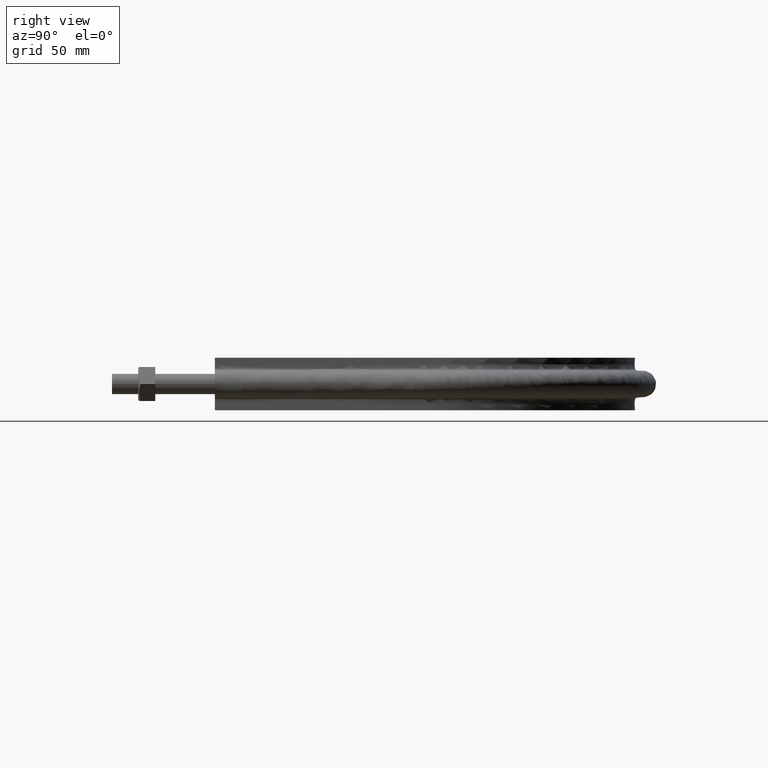
[diagram: clean part render]
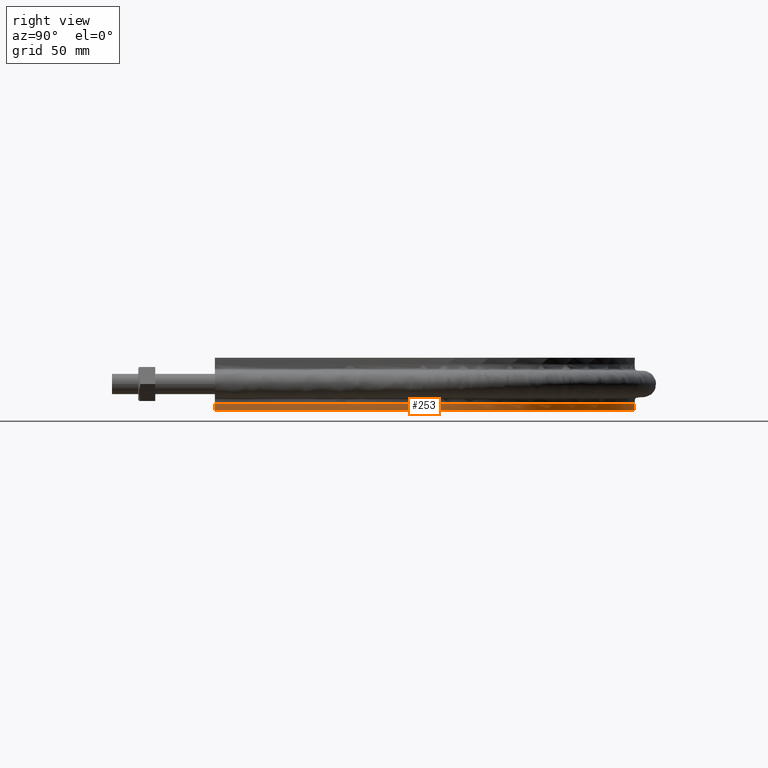
[diagram: same view with one face highlighted and labeled with its STEP entity id]
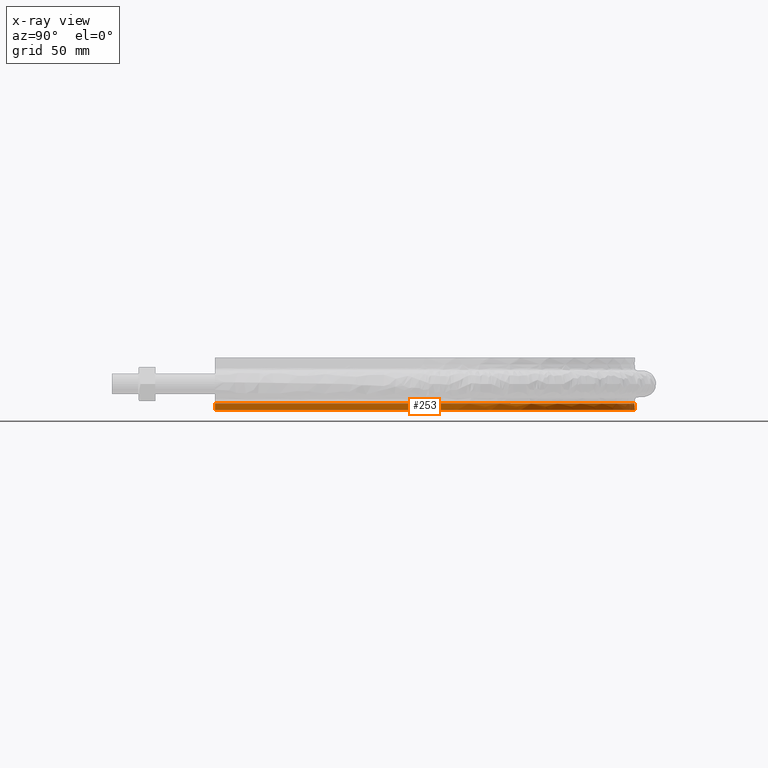
[diagram: x-ray of the same camera — body ghosted, the highlighted face saturated]
A machine part, right view. The second image highlights one B-rep face of the part: STEP entity #253.
The next image is the same camera in x-ray: the body ghosted, the highlighted face saturated — about 0% of this face is hidden behind the body in this view.
In plain terms, the highlighted face is a SurfaceOfExtrusion surface.
Its self-contained STEP definition (entity closure, byte-faithful):
#253 = ADVANCED_FACE( '', ( #347 ), #348, .T. );
#347 = FACE_OUTER_BOUND( '', #645, .T. );
#348 = SURFACE_OF_LINEAR_EXTRUSION( '', #646, #647 );
#645 = EDGE_LOOP( '', ( #1761, #1762, #1763, #1764 ) );
#646 = B_SPLINE_CURVE_WITH_KNOTS( '', 3, ( #1765, #1766, #1767, #1768, #1769, #1770, #1771, #1772, #1773, #1774, #1775, #1776, #1777, #1778, #1779, #1780, #1781, #1782, #1783, #1784, #1785, #1786, #1787, #1788, #1789, #1790, #1791, #1792, #1793, #1794, #1795, #1796, #1797, #1798, #1799, #1800, #1801, #1802, #1803, #1804, #1805, #1806, #1807, #1808, #1809, #1810, #1811, #1812, #1813, #1814, #1815, #1816, #1817, #1818, #1819, #1820, #1821, #1822, #1823, #1824, #1825, #1826, #1827, #1828, #1829, #1830, #1831, #1832, #1833, #1834, #1835, #1836, #1837, #1838, #1839, #1840, #1841, #1842, #1843, #1844, #1845, #1846, #1847, #1848, #1849, #1850, #1851, #1852, #1853, #1854, #1855, #1856, #1857, #1858, #1859, #1860, #1861, #1862, #1863, #1864, #1865, #1866, #1867, #1868, #1869, #1870, #1871, #1872, #1873, #1874 ), .UNSPECIFIED., .F., .F., ( 4, 1, 2, 2, 2, 2, 2, 2, 2, 2, 2, 2, 2, 2, 2, 2, 2, 2, 2, 2, 2, 2, 2, 2, 2, 2, 2, 2, 2, 2, 2, 2, 2, 2, 2, 2, 2, 2, 2, 2, 2, 2, 2, 2, 2, 2, 2, 2, 2, 2, 2, 2, 2, 2, 1, 4 ), ( 0.000000000000000, 0.124999999999995, 0.187499999999993, 0.191406249999993, 0.195312499999993, 0.203124999999992, 0.218749999999991, 0.222656249999991, 0.226562499999991, 0.234374999999991, 0.249999999999991, 0.281249999999991, 0.289062499999991, 0.292968749999991, 0.296874999999991, 0.312499999999991, 0.343749999999991, 0.351562499999991, 0.359374999999991, 0.374999999999990, 0.406249999999990, 0.421874999999990, 0.429687499999990, 0.437499999999990, 0.468749999999989, 0.484374999999989, 0.492187499999989, 0.499999999999989, 0.515624999999989, 0.531249999999988, 0.546874999999988, 0.554687499999988, 0.562499999999988, 0.578124999999988, 0.593749999999988, 0.624999999999988, 0.628906249999988, 0.632812499999988, 0.640624999999988, 0.656249999999988, 0.687499999999988, 0.691406249999988, 0.695312499999988, 0.703124999999988, 0.718749999999988, 0.749999999999988, 0.757812499999988, 0.761718749999988, 0.765624999999988, 0.781249999999989, 0.796874999999990, 0.804687499999990, 0.808593749999990, 0.812499999999990, 0.874999999999994, 1.00000000000000 ), .UNSPECIFIED. );
#647 = VECTOR( '', #1875, 1000.00000000000 );
#1761 = ORIENTED_EDGE( '', *, *, #1987, .T. );
#1762 = ORIENTED_EDGE( '', *, *, #1983, .T. );
#1763 = ORIENTED_EDGE( '', *, *, #1988, .F. );
#1764 = ORIENTED_EDGE( '', *, *, #1978, .F. );
#1765 = CARTESIAN_POINT( '', ( -164.400000000000, 78.5100000000001, -15.0000000000000 ) );
#1766 = CARTESIAN_POINT( '', ( -164.400000000000, 112.996106467763, -15.0000000000000 ) );
#1767 = CARTESIAN_POINT( '', ( -164.400000000000, 164.725266169408, -15.0000000000000 ) );
#1768 = CARTESIAN_POINT( '', ( -164.400000000000, 216.454425871052, -15.0000000000000 ) );
#1769 = CARTESIAN_POINT( '', ( -164.400000000000, 234.775169932051, -15.0000000000000 ) );
#1770 = CARTESIAN_POINT( '', ( -164.398813550317, 235.852821581500, -15.0000000000000 ) );
#1771 = CARTESIAN_POINT( '', ( -164.368108367063, 238.007189322103, -15.0000000000000 ) );
#1772 = CARTESIAN_POINT( '', ( -164.342080895018, 239.084020697952, -15.0000000000000 ) );
#1773 = CARTESIAN_POINT( '', ( -164.232092194460, 242.313461250392, -15.0000000000000 ) );
#1774 = CARTESIAN_POINT( '', ( -164.116241194121, 244.465017397138, -15.0000000000000 ) );
#1775 = CARTESIAN_POINT( '', ( -163.641462036595, 250.915484711679, -15.0000000000000 ) );
#1776 = CARTESIAN_POINT( '', ( -163.155580462305, 255.210203759885, -15.0000000000000 ) );
#1777 = CARTESIAN_POINT( '', ( -162.333675363724, 260.571517826757, -15.0000000000000 ) );
#1778 = CARTESIAN_POINT( '', ( -162.158545284194, 261.643425696206, -15.0000000000000 ) );
#1779 = CARTESIAN_POINT( '', ( -161.786628214989, 263.786526303843, -15.0000000000000 ) );
#1780 = CARTESIAN_POINT( '', ( -161.589634482679, 264.858713038455, -15.0000000000000 ) );
#1781 = CARTESIAN_POINT( '', ( -160.968305431881, 268.062088811464, -15.0000000000000 ) );
#1782 = CARTESIAN_POINT( '', ( -160.513270676098, 270.182710055850, -15.0000000000000 ) );
#1783 = CARTESIAN_POINT( '', ( -159.027557754481, 276.500359593573, -15.0000000000000 ) );
#1784 = CARTESIAN_POINT( '', ( -157.876518451671, 280.653264429394, -15.0000000000000 ) );
#1785 = CARTESIAN_POINT( '', ( -153.947032001795, 292.937345931315, -15.0000000000000 ) );
#1786 = CARTESIAN_POINT( '', ( -150.691120136139, 300.893487741848, -15.0000000000000 ) );
#1787 = CARTESIAN_POINT( '', ( -145.821985675345, 310.545668134871, -15.0000000000000 ) );
#1788 = CARTESIAN_POINT( '', ( -144.807995502513, 312.461380666881, -15.0000000000000 ) );
#1789 = CARTESIAN_POINT( '', ( -143.225880960344, 315.312539944798, -15.0000000000000 ) );
#1790 = CARTESIAN_POINT( '', ( -142.687697489771, 316.260241598423, -15.0000000000000 ) );
#1791 = CARTESIAN_POINT( '', ( -141.594350337442, 318.141956024918, -15.0000000000000 ) );
#1792 = CARTESIAN_POINT( '', ( -141.039267835167, 319.075891761575, -15.0000000000000 ) );
#1793 = CARTESIAN_POINT( '', ( -138.222181199068, 323.711268029201, -15.0000000000000 ) );
#1794 = CARTESIAN_POINT( '', ( -135.835418638084, 327.310018570784, -15.0000000000000 ) );
#1795 = CARTESIAN_POINT( '', ( -128.283562816433, 337.783966292530, -15.0000000000000 ) );
#1796 = CARTESIAN_POINT( '', ( -122.726288805896, 344.336355322911, -15.0000000000000 ) );
#1797 = CARTESIAN_POINT( '', ( -115.123140385251, 351.986423454744, -15.0000000000000 ) );
#1798 = CARTESIAN_POINT( '', ( -113.569638753351, 353.489379830996, -15.0000000000000 ) );
#1799 = CARTESIAN_POINT( '', ( -110.396195337457, 356.440604987088, -15.0000000000000 ) );
#1800 = CARTESIAN_POINT( '', ( -108.774438835459, 357.890427378995, -15.0000000000000 ) );
#1801 = CARTESIAN_POINT( '', ( -103.819607334312, 362.146372134186, -15.0000000000000 ) );
#1802 = CARTESIAN_POINT( '', ( -100.426161144554, 364.834793604190, -15.0000000000000 ) );
#1803 = CARTESIAN_POINT( '', ( -89.9824687653419, 372.465514094679, -15.0000000000000 ) );
#1804 = CARTESIAN_POINT( '', ( -82.6696423250386, 376.974545597898, -15.0000000000000 ) );
#1805 = CARTESIAN_POINT( '', ( -71.1713718990070, 382.865171733881, -15.0000000000000 ) );
#1806 = CARTESIAN_POINT( '', ( -67.2506245394262, 384.683525984584, -15.0000000000000 ) );
#1807 = CARTESIAN_POINT( '', ( -61.2349390330761, 387.189020812454, -15.0000000000000 ) );
#1808 = CARTESIAN_POINT( '', ( -59.2041890055403, 387.988083247064, -15.0000000000000 ) );
#1809 = CARTESIAN_POINT( '', ( -55.1322863354683, 389.498206135326, -15.0000000000000 ) );
#1810 = CARTESIAN_POINT( '', ( -53.0874238815457, 390.210949480402, -15.0000000000000 ) );
#1811 = CARTESIAN_POINT( '', ( -42.8192026236166, 393.566146384567, -15.0000000000000 ) );
#1812 = CARTESIAN_POINT( '', ( -34.4651179161253, 395.587794430536, -15.0000000000000 ) );
#1813 = CARTESIAN_POINT( '', ( -21.7242525597123, 397.624238271828, -15.0000000000000 ) );
#1814 = CARTESIAN_POINT( '', ( -17.4422836120292, 398.136775373455, -15.0000000000000 ) );
#1815 = CARTESIAN_POINT( '', ( -10.9662055313146, 398.653296815738, -15.0000000000000 ) );
#1816 = CARTESIAN_POINT( '', ( -8.79864529239620, 398.783359457582, -15.0000000000000 ) );
#1817 = CARTESIAN_POINT( '', ( -4.44551903538577, 398.957976921619, -15.0000000000000 ) );
#1818 = CARTESIAN_POINT( '', ( -2.27259610837854, 399.001985705461, -15.0000000000000 ) );
#1819 = CARTESIAN_POINT( '', ( 4.22655632945022, 399.006162562492, -15.0000000000000 ) );
#1820 = CARTESIAN_POINT( '', ( 8.53713545173537, 398.838905013959, -15.0000000000000 ) );
#1821 = CARTESIAN_POINT( '', ( 17.1147215710093, 398.170483930921, -15.0000000000000 ) );
#1822 = CARTESIAN_POINT( '', ( 21.3817269434237, 397.669307946827, -15.0000000000000 ) );
#1823 = CARTESIAN_POINT( '', ( 29.8718824409126, 396.330880345343, -15.0000000000000 ) );
#1824 = CARTESIAN_POINT( '', ( 34.0949513257592, 395.493006160240, -15.0000000000000 ) );
#1825 = CARTESIAN_POINT( '', ( 40.3962993198101, 393.981349502615, -15.0000000000000 ) );
#1826 = CARTESIAN_POINT( '', ( 42.4912038565129, 393.434972561113, -15.0000000000000 ) );
#1827 = CARTESIAN_POINT( '', ( 46.6697995000334, 392.256286873398, -15.0000000000000 ) );
#1828 = CARTESIAN_POINT( '', ( 48.7579338922558, 391.622436253105, -15.0000000000000 ) );
#1829 = CARTESIAN_POINT( '', ( 54.9584216875447, 389.605524079873, -15.0000000000000 ) );
#1830 = CARTESIAN_POINT( '', ( 59.0140687451709, 388.106221395848, -15.0000000000000 ) );
#1831 = CARTESIAN_POINT( '', ( 66.9734086702903, 384.806295118109, -15.0000000000000 ) );
#1832 = CARTESIAN_POINT( '', ( 70.8770915855636, 383.005651789421, -15.0000000000000 ) );
#1833 = CARTESIAN_POINT( '', ( 82.3605021218268, 377.152321599626, -15.0000000000000 ) );
#1834 = CARTESIAN_POINT( '', ( 89.7120307014920, 372.647122421075, -15.0000000000000 ) );
#1835 = CARTESIAN_POINT( '', ( 97.6299249979688, 366.879626274600, -15.0000000000000 ) );
#1836 = CARTESIAN_POINT( '', ( 98.5047204132680, 366.229041053651, -15.0000000000000 ) );
#1837 = CARTESIAN_POINT( '', ( 100.236657581933, 364.914222046599, -15.0000000000000 ) );
#1838 = CARTESIAN_POINT( '', ( 101.094794684466, 364.249272856705, -15.0000000000000 ) );
#1839 = CARTESIAN_POINT( '', ( 103.645933153505, 362.232019577849, -15.0000000000000 ) );
#1840 = CARTESIAN_POINT( '', ( 105.315674270232, 360.857321899442, -15.0000000000000 ) );
#1841 = CARTESIAN_POINT( '', ( 110.233147606976, 356.644897390919, -15.0000000000000 ) );
#1842 = CARTESIAN_POINT( '', ( 113.389316657785, 353.719018970044, -15.0000000000000 ) );
#1843 = CARTESIAN_POINT( '', ( 122.494796724361, 344.591882752152, -15.0000000000000 ) );
#1844 = CARTESIAN_POINT( '', ( 128.081145291164, 338.041186228428, -15.0000000000000 ) );
#1845 = CARTESIAN_POINT( '', ( 133.803670384363, 330.130479675381, -15.0000000000000 ) );
#1846 = CARTESIAN_POINT( '', ( 134.431692733714, 329.243989644066, -15.0000000000000 ) );
#1847 = CARTESIAN_POINT( '', ( 135.671998176902, 327.455856759366, -15.0000000000000 ) );
#1848 = CARTESIAN_POINT( '', ( 136.284665085840, 326.553597174778, -15.0000000000000 ) );
#1849 = CARTESIAN_POINT( '', ( 138.091073738600, 323.835825608081, -15.0000000000000 ) );
#1850 = CARTESIAN_POINT( '', ( 139.255724754700, 322.005851801354, -15.0000000000000 ) );
#1851 = CARTESIAN_POINT( '', ( 142.632951955004, 316.462530378628, -15.0000000000000 ) );
#1852 = CARTESIAN_POINT( '', ( 144.729041813961, 312.695892337488, -15.0000000000000 ) );
#1853 = CARTESIAN_POINT( '', ( 150.559103149299, 301.186356080804, -15.0000000000000 ) );
#1854 = CARTESIAN_POINT( '', ( 153.837172045715, 293.234890531218, -15.0000000000000 ) );
#1855 = CARTESIAN_POINT( '', ( 157.149590192740, 282.936358190019, -15.0000000000000 ) );
#1856 = CARTESIAN_POINT( '', ( 157.772812341462, 280.858690291605, -15.0000000000000 ) );
#1857 = CARTESIAN_POINT( '', ( 158.648068770349, 277.714933118652, -15.0000000000000 ) );
#1858 = CARTESIAN_POINT( '', ( 158.930158123234, 276.661365833308, -15.0000000000000 ) );
#1859 = CARTESIAN_POINT( '', ( 159.472262153517, 274.553221977531, -15.0000000000000 ) );
#1860 = CARTESIAN_POINT( '', ( 159.732447986844, 273.498121732389, -15.0000000000000 ) );
#1861 = CARTESIAN_POINT( '', ( 160.979600094206, 268.217531333791, -15.0000000000000 ) );
#1862 = CARTESIAN_POINT( '', ( 161.805586980862, 263.976806953231, -15.0000000000000 ) );
#1863 = CARTESIAN_POINT( '', ( 163.122468535573, 255.463646859113, -15.0000000000000 ) );
#1864 = CARTESIAN_POINT( '', ( 163.613345066263, 251.191209429132, -15.0000000000000 ) );
#1865 = CARTESIAN_POINT( '', ( 164.098151632013, 244.758751892187, -15.0000000000000 ) );
#1866 = CARTESIAN_POINT( '', ( 164.217770636892, 242.610626316205, -15.0000000000000 ) );
#1867 = CARTESIAN_POINT( '', ( 164.333610316843, 239.382420246157, -15.0000000000000 ) );
#1868 = CARTESIAN_POINT( '', ( 164.361621235171, 238.305348210462, -15.0000000000000 ) );
#1869 = CARTESIAN_POINT( '', ( 164.396285024590, 236.149182927863, -15.0000000000000 ) );
#1870 = CARTESIAN_POINT( '', ( 164.400000000000, 235.069811654245, -15.0000000000000 ) );
#1871 = CARTESIAN_POINT( '', ( 164.400000000000, 216.714523391334, -15.0000000000000 ) );
#1872 = CARTESIAN_POINT( '', ( 164.400000000000, 164.887827119584, -15.0000000000000 ) );
#1873 = CARTESIAN_POINT( '', ( 164.400000000000, 113.061130847834, -15.0000000000000 ) );
#1874 = CARTESIAN_POINT( '', ( 164.400000000000, 78.5100000000000, -15.0000000000000 ) );
#1875 = DIRECTION( '', ( 0.000000000000000, 0.000000000000000, -1.00000000000000 ) );
#1978 = EDGE_CURVE( '', #2095, #2097, #2098, .T. );
#1983 = EDGE_CURVE( '', #2107, #2105, #2108, .T. );
#1987 = EDGE_CURVE( '', #2095, #2107, #2113, .T. );
#1988 = EDGE_CURVE( '', #2097, #2105, #2114, .T. );
#2095 = VERTEX_POINT( '', #2548 );
#2097 = VERTEX_POINT( '', #2581 );
#2098 = LINE( '', #2582, #2583 );
#2105 = VERTEX_POINT( '', #2602 );
#2107 = VERTEX_POINT( '', #2605 );
#2108 = LINE( '', #2606, #2607 );
#2113 = B_SPLINE_CURVE_WITH_KNOTS( '', 3, ( #2654, #2655, #2656, #2657, #2658, #2659, #2660, #2661, #2662, #2663, #2664, #2665, #2666, #2667, #2668, #2669, #2670, #2671, #2672, #2673, #2674, #2675, #2676, #2677, #2678, #2679, #2680, #2681, #2682, #2683, #2684, #2685, #2686, #2687, #2688, #2689, #2690, #2691, #2692, #2693, #2694, #2695, #2696, #2697, #2698, #2699, #2700, #2701, #2702, #2703, #2704, #2705, #2706, #2707, #2708, #2709, #2710, #2711, #2712, #2713, #2714, #2715, #2716, #2717, #2718, #2719, #2720, #2721, #2722, #2723, #2724, #2725, #2726, #2727, #2728, #2729, #2730, #2731, #2732, #2733, #2734, #2735, #2736, #2737, #2738, #2739, #2740, #2741, #2742, #2743, #2744, #2745, #2746, #2747, #2748, #2749, #2750, #2751, #2752, #2753, #2754, #2755, #2756, #2757, #2758, #2759, #2760, #2761, #2762, #2763 ), .UNSPECIFIED., .F., .F., ( 4, 1, 2, 2, 2, 2, 2, 2, 2, 2, 2, 2, 2, 2, 2, 2, 2, 2, 2, 2, 2, 2, 2, 2, 2, 2, 2, 2, 2, 2, 2, 2, 2, 2, 2, 2, 2, 2, 2, 2, 2, 2, 2, 2, 2, 2, 2, 2, 2, 2, 2, 2, 2, 2, 1, 4 ), ( 0.000000000000000, 0.124999999999995, 0.187499999999993, 0.191406249999993, 0.195312499999993, 0.203124999999992, 0.218749999999991, 0.222656249999991, 0.226562499999991, 0.234374999999991, 0.249999999999991, 0.281249999999991, 0.289062499999991, 0.292968749999991, 0.296874999999991, 0.312499999999991, 0.343749999999991, 0.351562499999991, 0.359374999999991, 0.374999999999990, 0.406249999999990, 0.421874999999990, 0.429687499999990, 0.437499999999990, 0.468749999999989, 0.484374999999989, 0.492187499999989, 0.499999999999989, 0.515624999999989, 0.531249999999988, 0.546874999999988, 0.554687499999988, 0.562499999999988, 0.578124999999988, 0.593749999999988, 0.624999999999988, 0.628906249999988, 0.632812499999988, 0.640624999999988, 0.656249999999988, 0.687499999999988, 0.691406249999988, 0.695312499999988, 0.703124999999988, 0.718749999999988, 0.749999999999988, 0.757812499999988, 0.761718749999988, 0.765624999999988, 0.781249999999989, 0.796874999999990, 0.804687499999990, 0.808593749999990, 0.812499999999990, 0.874999999999994, 1.00000000000000 ), .UNSPECIFIED. );
#2114 = B_SPLINE_CURVE_WITH_KNOTS( '', 3, ( #2764, #2765, #2766, #2767, #2768, #2769, #2770, #2771, #2772, #2773, #2774, #2775, #2776, #2777, #2778, #2779, #2780, #2781, #2782, #2783, #2784, #2785, #2786, #2787, #2788, #2789, #2790, #2791, #2792, #2793, #2794, #2795, #2796, #2797, #2798, #2799, #2800, #2801, #2802, #2803, #2804, #2805, #2806, #2807, #2808, #2809, #2810, #2811, #2812, #2813, #2814, #2815, #2816, #2817, #2818, #2819, #2820, #2821, #2822, #2823, #2824, #2825, #2826, #2827, #2828, #2829, #2830, #2831, #2832, #2833, #2834, #2835, #2836, #2837, #2838, #2839, #2840, #2841, #2842, #2843, #2844, #2845, #2846, #2847, #2848, #2849, #2850, #2851, #2852, #2853, #2854, #2855, #2856, #2857, #2858, #2859, #2860, #2861, #2862, #2863, #2864, #2865, #2866, #2867, #2868, #2869, #2870, #2871, #2872, #2873, #2874, #2875, #2876, #2877, #2878, #2879, #2880, #2881, #2882, #2883, #2884, #2885, #2886, #2887, #2888, #2889, #2890, #2891, #2892, #2893, #2894 ), .UNSPECIFIED., .F., .F., ( 4, 1, 1, 1, 1, 2, 2, 2, 2, 2, 2, 2, 2, 2, 2, 2, 2, 2, 2, 2, 2, 2, 2, 2, 2, 2, 2, 2, 2, 2, 2, 2, 2, 2, 2, 2, 2, 2, 2, 2, 2, 2, 2, 2, 2, 2, 2, 2, 2, 2, 2, 2, 2, 2, 2, 2, 1, 2, 2, 2, 2, 2, 2, 2, 2, 1, 1, 1, 1, 4 ), ( 0.000000000000000, 0.104054729085109, 0.130068411356386, 0.143075252492024, 0.149578673059843, 0.152830383343753, 0.156082093627663, 0.159333803911572, 0.162585514195482, 0.169088934763301, 0.182095775898939, 0.195102617034578, 0.208109458170216, 0.221116299305855, 0.227619719873674, 0.234123140441493, 0.247129981577132, 0.260136822712770, 0.273143663848409, 0.276395374132318, 0.279647084416228, 0.286150504984047, 0.299157346119686, 0.312164187255325, 0.325171028390963, 0.331674448958783, 0.334926159242692, 0.338177869526602, 0.351184710662240, 0.364191551797878, 0.377198392933517, 0.383701813501336, 0.386953523785245, 0.390205234069155, 0.403212075204793, 0.416218916340431, 0.429225757476069, 0.442232598611708, 0.448736019179527, 0.455239439747346, 0.468246280882984, 0.481253122018622, 0.494259963154260, 0.500763383722080, 0.507266804289899, 0.520273645425537, 0.533280486561175, 0.546287327696813, 0.552790748264632, 0.556042458548542, 0.559294168832451, 0.572301009968090, 0.585307851103728, 0.598314692239366, 0.611321533375004, 0.614573243658913, 0.617824953942822, 0.624328374510641, 0.637335215646279, 0.650342056781918, 0.663348897917556, 0.669852318485375, 0.673104028769284, 0.676355739053194, 0.679607449337103, 0.682859159621013, 0.689362580188832, 0.702369421324470, 0.728383103595746, 0.832437832680851 ), .UNSPECIFIED. );
#2548 = CARTESIAN_POINT( '', ( -164.400000000000, 78.5100000000001, -15.0000000000000 ) );
#2581 = CARTESIAN_POINT( '', ( -164.400000000000, 78.5100000000001, -20.0000000000000 ) );
#2582 = CARTESIAN_POINT( '', ( -164.400000000000, 78.5100000000001, -15.0000000000000 ) );
#2583 = VECTOR( '', #3001, 1000.00000000000 );
#2602 = CARTESIAN_POINT( '', ( 164.400000000000, 78.5100000000000, -20.0000000000000 ) );
#2605 = CARTESIAN_POINT( '', ( 164.400000000000, 78.5100000000001, -15.0000000000000 ) );
#2606 = CARTESIAN_POINT( '', ( 164.400000000000, 78.5100000000000, -15.0000000000000 ) );
#2607 = VECTOR( '', #3005, 1000.00000000000 );
#2654 = CARTESIAN_POINT( '', ( -164.400000000000, 78.5100000000001, -15.0000000000000 ) );
#2655 = CARTESIAN_POINT( '', ( -164.400000000000, 112.996106467763, -15.0000000000000 ) );
#2656 = CARTESIAN_POINT( '', ( -164.400000000000, 164.725266169408, -15.0000000000000 ) );
#2657 = CARTESIAN_POINT( '', ( -164.400000000000, 216.454425871052, -15.0000000000000 ) );
#2658 = CARTESIAN_POINT( '', ( -164.400000000000, 234.775169932051, -15.0000000000000 ) );
#2659 = CARTESIAN_POINT( '', ( -164.398813550317, 235.852821581500, -15.0000000000000 ) );
#2660 = CARTESIAN_POINT( '', ( -164.368108367063, 238.007189322103, -15.0000000000000 ) );
#2661 = CARTESIAN_POINT( '', ( -164.342080895018, 239.084020697952, -15.0000000000000 ) );
#2662 = CARTESIAN_POINT( '', ( -164.232092194460, 242.313461250392, -15.0000000000000 ) );
#2663 = CARTESIAN_POINT( '', ( -164.116241194121, 244.465017397138, -15.0000000000000 ) );
#2664 = CARTESIAN_POINT( '', ( -163.641462036595, 250.915484711679, -15.0000000000000 ) );
#2665 = CARTESIAN_POINT( '', ( -163.155580462305, 255.210203759885, -15.0000000000000 ) );
#2666 = CARTESIAN_POINT( '', ( -162.333675363724, 260.571517826757, -15.0000000000000 ) );
#2667 = CARTESIAN_POINT( '', ( -162.158545284194, 261.643425696206, -15.0000000000000 ) );
#2668 = CARTESIAN_POINT( '', ( -161.786628214989, 263.786526303843, -15.0000000000000 ) );
#2669 = CARTESIAN_POINT( '', ( -161.589634482679, 264.858713038455, -15.0000000000000 ) );
#2670 = CARTESIAN_POINT( '', ( -160.968305431881, 268.062088811464, -15.0000000000000 ) );
#2671 = CARTESIAN_POINT( '', ( -160.513270676098, 270.182710055850, -15.0000000000000 ) );
#2672 = CARTESIAN_POINT( '', ( -159.027557754481, 276.500359593573, -15.0000000000000 ) );
#2673 = CARTESIAN_POINT( '', ( -157.876518451671, 280.653264429394, -15.0000000000000 ) );
#2674 = CARTESIAN_POINT( '', ( -153.947032001795, 292.937345931315, -15.0000000000000 ) );
#2675 = CARTESIAN_POINT( '', ( -150.691120136139, 300.893487741848, -15.0000000000000 ) );
#2676 = CARTESIAN_POINT( '', ( -145.821985675345, 310.545668134871, -15.0000000000000 ) );
#2677 = CARTESIAN_POINT( '', ( -144.807995502513, 312.461380666881, -15.0000000000000 ) );
#2678 = CARTESIAN_POINT( '', ( -143.225880960344, 315.312539944798, -15.0000000000000 ) );
#2679 = CARTESIAN_POINT( '', ( -142.687697489771, 316.260241598423, -15.0000000000000 ) );
#2680 = CARTESIAN_POINT( '', ( -141.594350337442, 318.141956024918, -15.0000000000000 ) );
#2681 = CARTESIAN_POINT( '', ( -141.039267835167, 319.075891761575, -15.0000000000000 ) );
#2682 = CARTESIAN_POINT( '', ( -138.222181199068, 323.711268029201, -15.0000000000000 ) );
#2683 = CARTESIAN_POINT( '', ( -135.835418638084, 327.310018570784, -15.0000000000000 ) );
#2684 = CARTESIAN_POINT( '', ( -128.283562816433, 337.783966292530, -15.0000000000000 ) );
#2685 = CARTESIAN_POINT( '', ( -122.726288805896, 344.336355322911, -15.0000000000000 ) );
#2686 = CARTESIAN_POINT( '', ( -115.123140385251, 351.986423454744, -15.0000000000000 ) );
#2687 = CARTESIAN_POINT( '', ( -113.569638753351, 353.489379830996, -15.0000000000000 ) );
#2688 = CARTESIAN_POINT( '', ( -110.396195337457, 356.440604987088, -15.0000000000000 ) );
#2689 = CARTESIAN_POINT( '', ( -108.774438835459, 357.890427378995, -15.0000000000000 ) );
#2690 = CARTESIAN_POINT( '', ( -103.819607334312, 362.146372134186, -15.0000000000000 ) );
#2691 = CARTESIAN_POINT( '', ( -100.426161144554, 364.834793604190, -15.0000000000000 ) );
#2692 = CARTESIAN_POINT( '', ( -89.9824687653419, 372.465514094679, -15.0000000000000 ) );
#2693 = CARTESIAN_POINT( '', ( -82.6696423250386, 376.974545597898, -15.0000000000000 ) );
#2694 = CARTESIAN_POINT( '', ( -71.1713718990070, 382.865171733881, -15.0000000000000 ) );
#2695 = CARTESIAN_POINT( '', ( -67.2506245394262, 384.683525984584, -15.0000000000000 ) );
#2696 = CARTESIAN_POINT( '', ( -61.2349390330761, 387.189020812454, -15.0000000000000 ) );
#2697 = CARTESIAN_POINT( '', ( -59.2041890055403, 387.988083247064, -15.0000000000000 ) );
#2698 = CARTESIAN_POINT( '', ( -55.1322863354683, 389.498206135326, -15.0000000000000 ) );
#2699 = CARTESIAN_POINT( '', ( -53.0874238815457, 390.210949480402, -15.0000000000000 ) );
#2700 = CARTESIAN_POINT( '', ( -42.8192026236166, 393.566146384567, -15.0000000000000 ) );
#2701 = CARTESIAN_POINT( '', ( -34.4651179161253, 395.587794430536, -15.0000000000000 ) );
#2702 = CARTESIAN_POINT( '', ( -21.7242525597123, 397.624238271828, -15.0000000000000 ) );
#2703 = CARTESIAN_POINT( '', ( -17.4422836120292, 398.136775373455, -15.0000000000000 ) );
#2704 = CARTESIAN_POINT( '', ( -10.9662055313146, 398.653296815738, -15.0000000000000 ) );
#2705 = CARTESIAN_POINT( '', ( -8.79864529239620, 398.783359457582, -15.0000000000000 ) );
#2706 = CARTESIAN_POINT( '', ( -4.44551903538577, 398.957976921619, -15.0000000000000 ) );
#2707 = CARTESIAN_POINT( '', ( -2.27259610837854, 399.001985705461, -15.0000000000000 ) );
#2708 = CARTESIAN_POINT( '', ( 4.22655632945022, 399.006162562492, -15.0000000000000 ) );
#2709 = CARTESIAN_POINT( '', ( 8.53713545173537, 398.838905013959, -15.0000000000000 ) );
#2710 = CARTESIAN_POINT( '', ( 17.1147215710093, 398.170483930921, -15.0000000000000 ) );
#2711 = CARTESIAN_POINT( '', ( 21.3817269434237, 397.669307946827, -15.0000000000000 ) );
#2712 = CARTESIAN_POINT( '', ( 29.8718824409126, 396.330880345343, -15.0000000000000 ) );
#2713 = CARTESIAN_POINT( '', ( 34.0949513257592, 395.493006160240, -15.0000000000000 ) );
#2714 = CARTESIAN_POINT( '', ( 40.3962993198101, 393.981349502615, -15.0000000000000 ) );
#2715 = CARTESIAN_POINT( '', ( 42.4912038565129, 393.434972561113, -15.0000000000000 ) );
#2716 = CARTESIAN_POINT( '', ( 46.6697995000334, 392.256286873398, -15.0000000000000 ) );
#2717 = CARTESIAN_POINT( '', ( 48.7579338922558, 391.622436253105, -15.0000000000000 ) );
#2718 = CARTESIAN_POINT( '', ( 54.9584216875447, 389.605524079873, -15.0000000000000 ) );
#2719 = CARTESIAN_POINT( '', ( 59.0140687451709, 388.106221395848, -15.0000000000000 ) );
#2720 = CARTESIAN_POINT( '', ( 66.9734086702903, 384.806295118109, -15.0000000000000 ) );
#2721 = CARTESIAN_POINT( '', ( 70.8770915855636, 383.005651789421, -15.0000000000000 ) );
#2722 = CARTESIAN_POINT( '', ( 82.3605021218268, 377.152321599626, -15.0000000000000 ) );
#2723 = CARTESIAN_POINT( '', ( 89.7120307014920, 372.647122421075, -15.0000000000000 ) );
#2724 = CARTESIAN_POINT( '', ( 97.6299249979688, 366.879626274600, -15.0000000000000 ) );
#2725 = CARTESIAN_POINT( '', ( 98.5047204132680, 366.229041053651, -15.0000000000000 ) );
#2726 = CARTESIAN_POINT( '', ( 100.236657581933, 364.914222046599, -15.0000000000000 ) );
#2727 = CARTESIAN_POINT( '', ( 101.094794684466, 364.249272856705, -15.0000000000000 ) );
#2728 = CARTESIAN_POINT( '', ( 103.645933153505, 362.232019577849, -15.0000000000000 ) );
#2729 = CARTESIAN_POINT( '', ( 105.315674270232, 360.857321899442, -15.0000000000000 ) );
#2730 = CARTESIAN_POINT( '', ( 110.233147606976, 356.644897390919, -15.0000000000000 ) );
#2731 = CARTESIAN_POINT( '', ( 113.389316657785, 353.719018970044, -15.0000000000000 ) );
#2732 = CARTESIAN_POINT( '', ( 122.494796724361, 344.591882752152, -15.0000000000000 ) );
#2733 = CARTESIAN_POINT( '', ( 128.081145291164, 338.041186228428, -15.0000000000000 ) );
#2734 = CARTESIAN_POINT( '', ( 133.803670384363, 330.130479675381, -15.0000000000000 ) );
#2735 = CARTESIAN_POINT( '', ( 134.431692733714, 329.243989644066, -15.0000000000000 ) );
#2736 = CARTESIAN_POINT( '', ( 135.671998176902, 327.455856759366, -15.0000000000000 ) );
#2737 = CARTESIAN_POINT( '', ( 136.284665085840, 326.553597174778, -15.0000000000000 ) );
#2738 = CARTESIAN_POINT( '', ( 138.091073738600, 323.835825608081, -15.0000000000000 ) );
#2739 = CARTESIAN_POINT( '', ( 139.255724754700, 322.005851801354, -15.0000000000000 ) );
#2740 = CARTESIAN_POINT( '', ( 142.632951955004, 316.462530378628, -15.0000000000000 ) );
#2741 = CARTESIAN_POINT( '', ( 144.729041813961, 312.695892337488, -15.0000000000000 ) );
#2742 = CARTESIAN_POINT( '', ( 150.559103149299, 301.186356080804, -15.0000000000000 ) );
#2743 = CARTESIAN_POINT( '', ( 153.837172045715, 293.234890531218, -15.0000000000000 ) );
#2744 = CARTESIAN_POINT( '', ( 157.149590192740, 282.936358190019, -15.0000000000000 ) );
#2745 = CARTESIAN_POINT( '', ( 157.772812341462, 280.858690291605, -15.0000000000000 ) );
#2746 = CARTESIAN_POINT( '', ( 158.648068770349, 277.714933118652, -15.0000000000000 ) );
#2747 = CARTESIAN_POINT( '', ( 158.930158123234, 276.661365833308, -15.0000000000000 ) );
#2748 = CARTESIAN_POINT( '', ( 159.472262153517, 274.553221977531, -15.0000000000000 ) );
#2749 = CARTESIAN_POINT( '', ( 159.732447986844, 273.498121732389, -15.0000000000000 ) );
#2750 = CARTESIAN_POINT( '', ( 160.979600094206, 268.217531333791, -15.0000000000000 ) );
#2751 = CARTESIAN_POINT( '', ( 161.805586980862, 263.976806953231, -15.0000000000000 ) );
#2752 = CARTESIAN_POINT( '', ( 163.122468535573, 255.463646859113, -15.0000000000000 ) );
#2753 = CARTESIAN_POINT( '', ( 163.613345066263, 251.191209429132, -15.0000000000000 ) );
#2754 = CARTESIAN_POINT( '', ( 164.098151632013, 244.758751892187, -15.0000000000000 ) );
#2755 = CARTESIAN_POINT( '', ( 164.217770636892, 242.610626316205, -15.0000000000000 ) );
#2756 = CARTESIAN_POINT( '', ( 164.333610316843, 239.382420246157, -15.0000000000000 ) );
#2757 = CARTESIAN_POINT( '', ( 164.361621235171, 238.305348210462, -15.0000000000000 ) );
#2758 = CARTESIAN_POINT( '', ( 164.396285024590, 236.149182927863, -15.0000000000000 ) );
#2759 = CARTESIAN_POINT( '', ( 164.400000000000, 235.069811654245, -15.0000000000000 ) );
#2760 = CARTESIAN_POINT( '', ( 164.400000000000, 216.714523391334, -15.0000000000000 ) );
#2761 = CARTESIAN_POINT( '', ( 164.400000000000, 164.887827119584, -15.0000000000000 ) );
#2762 = CARTESIAN_POINT( '', ( 164.400000000000, 113.061130847834, -15.0000000000000 ) );
#2763 = CARTESIAN_POINT( '', ( 164.400000000000, 78.5100000000000, -15.0000000000000 ) );
#2764 = CARTESIAN_POINT( '', ( -164.400000000000, 78.5100000000001, -20.0000000000000 ) );
#2765 = CARTESIAN_POINT( '', ( -164.400000000000, 113.194956691567, -20.0000000000000 ) );
#2766 = CARTESIAN_POINT( '', ( -164.400000000000, 156.551152556025, -20.0000000000000 ) );
#2767 = CARTESIAN_POINT( '', ( -164.400000000000, 204.242968006929, -20.0000000000000 ) );
#2768 = CARTESIAN_POINT( '', ( -164.400000000000, 219.417636559489, -20.0000000000000 ) );
#2769 = CARTESIAN_POINT( '', ( -164.400000000000, 227.004970835769, -20.0000000000000 ) );
#2770 = CARTESIAN_POINT( '', ( -164.400000000000, 230.256685525604, -20.0000000000000 ) );
#2771 = CARTESIAN_POINT( '', ( -164.400000000000, 232.424495318827, -20.0000000000000 ) );
#2772 = CARTESIAN_POINT( '', ( -164.401112814939, 233.508402047334, -20.0000000000000 ) );
#2773 = CARTESIAN_POINT( '', ( -164.397791436545, 235.676206372964, -20.0000000000000 ) );
#2774 = CARTESIAN_POINT( '', ( -164.389397229221, 236.760097451186, -20.0000000000000 ) );
#2775 = CARTESIAN_POINT( '', ( -164.346347317781, 238.927836376433, -20.0000000000000 ) );
#2776 = CARTESIAN_POINT( '', ( -164.314015247172, 240.011688048583, -20.0000000000000 ) );
#2777 = CARTESIAN_POINT( '', ( -164.184658021981, 243.263189792924, -20.0000000000000 ) );
#2778 = CARTESIAN_POINT( '', ( -164.054986387869, 245.432649531979, -20.0000000000000 ) );
#2779 = CARTESIAN_POINT( '', ( -163.540089866603, 251.903443163605, -20.0000000000000 ) );
#2780 = CARTESIAN_POINT( '', ( -163.028857186242, 256.178647842779, -20.0000000000000 ) );
#2781 = CARTESIAN_POINT( '', ( -161.680784922928, 264.654119101839, -20.0000000000000 ) );
#2782 = CARTESIAN_POINT( '', ( -160.843839994309, 268.854361436527, -20.0000000000000 ) );
#2783 = CARTESIAN_POINT( '', ( -158.845991034651, 277.180287246155, -20.0000000000000 ) );
#2784 = CARTESIAN_POINT( '', ( -157.684954010361, 281.305940112835, -20.0000000000000 ) );
#2785 = CARTESIAN_POINT( '', ( -155.032434907613, 289.481194251213, -20.0000000000000 ) );
#2786 = CARTESIAN_POINT( '', ( -153.540637667280, 293.530722988726, -20.0000000000000 ) );
#2787 = CARTESIAN_POINT( '', ( -151.046446265380, 299.545983905580, -20.0000000000000 ) );
#2788 = CARTESIAN_POINT( '', ( -150.176639375754, 301.530591569497, -20.0000000000000 ) );
#2789 = CARTESIAN_POINT( '', ( -148.365677489265, 305.451034189669, -20.0000000000000 ) );
#2790 = CARTESIAN_POINT( '', ( -147.423966722703, 307.388338955487, -20.0000000000000 ) );
#2791 = CARTESIAN_POINT( '', ( -144.492313373275, 313.132875216607, -20.0000000000000 ) );
#2792 = CARTESIAN_POINT( '', ( -142.395491839973, 316.872502291720, -20.0000000000000 ) );
#2793 = CARTESIAN_POINT( '', ( -137.921089039274, 324.174166757927, -20.0000000000000 ) );
#2794 = CARTESIAN_POINT( '', ( -135.543392362292, 327.736131148697, -20.0000000000000 ) );
#2795 = CARTESIAN_POINT( '', ( -130.504111697186, 334.680491951784, -20.0000000000000 ) );
#2796 = CARTESIAN_POINT( '', ( -127.842299055251, 338.062743733112, -20.0000000000000 ) );
#2797 = CARTESIAN_POINT( '', ( -124.331524748109, 342.174483348527, -20.0000000000000 ) );
#2798 = CARTESIAN_POINT( '', ( -123.620193252739, 342.991026751501, -20.0000000000000 ) );
#2799 = CARTESIAN_POINT( '', ( -122.179027254971, 344.612409802346, -20.0000000000000 ) );
#2800 = CARTESIAN_POINT( '', ( -121.449202472703, 345.417189981230, -20.0000000000000 ) );
#2801 = CARTESIAN_POINT( '', ( -119.241901422658, 347.803147571149, -20.0000000000000 ) );
#2802 = CARTESIAN_POINT( '', ( -117.743364650801, 349.359649553351, -20.0000000000000 ) );
#2803 = CARTESIAN_POINT( '', ( -113.168603753490, 353.929094656280, -20.0000000000000 ) );
#2804 = CARTESIAN_POINT( '', ( -110.013226002105, 356.841973084913, -20.0000000000000 ) );
#2805 = CARTESIAN_POINT( '', ( -103.496070778984, 362.406802862437, -20.0000000000000 ) );
#2806 = CARTESIAN_POINT( '', ( -100.134198242748, 365.058634032376, -20.0000000000000 ) );
#2807 = CARTESIAN_POINT( '', ( -93.2034983802226, 370.100667582664, -20.0000000000000 ) );
#2808 = CARTESIAN_POINT( '', ( -89.6348208454292, 372.491059326921, -20.0000000000000 ) );
#2809 = CARTESIAN_POINT( '', ( -84.1216642835634, 375.874200301252, -20.0000000000000 ) );
#2810 = CARTESIAN_POINT( '', ( -82.2572525184615, 376.968169226843, -20.0000000000000 ) );
#2811 = CARTESIAN_POINT( '', ( -79.4199251738959, 378.557658096214, -20.0000000000000 ) );
#2812 = CARTESIAN_POINT( '', ( -78.4664937879993, 379.079355636748, -20.0000000000000 ) );
#2813 = CARTESIAN_POINT( '', ( -76.5540001382347, 380.101226290093, -20.0000000000000 ) );
#2814 = CARTESIAN_POINT( '', ( -75.5941946256078, 380.601833763864, -20.0000000000000 ) );
#2815 = CARTESIAN_POINT( '', ( -70.7776054635586, 383.053904702583, -20.0000000000000 ) );
#2816 = CARTESIAN_POINT( '', ( -66.8682015972500, 384.852656297692, -20.0000000000000 ) );
#2817 = CARTESIAN_POINT( '', ( -58.9404340251184, 388.133941467268, -20.0000000000000 ) );
#2818 = CARTESIAN_POINT( '', ( -54.9221074398468, 389.616582771218, -20.0000000000000 ) );
#2819 = CARTESIAN_POINT( '', ( -46.7771352731453, 392.267507183329, -20.0000000000000 ) );
#2820 = CARTESIAN_POINT( '', ( -42.6507752742801, 393.436619095513, -20.0000000000000 ) );
#2821 = CARTESIAN_POINT( '', ( -36.3779362801172, 394.948540612920, -20.0000000000000 ) );
#2822 = CARTESIAN_POINT( '', ( -34.2731054845749, 395.412219626070, -20.0000000000000 ) );
#2823 = CARTESIAN_POINT( '', ( -31.0947095102859, 396.046358265767, -20.0000000000000 ) );
#2824 = CARTESIAN_POINT( '', ( -30.0317191361202, 396.247507583014, -20.0000000000000 ) );
#2825 = CARTESIAN_POINT( '', ( -27.8986333936867, 396.629186444373, -20.0000000000000 ) );
#2826 = CARTESIAN_POINT( '', ( -26.8273434139405, 396.809901238471, -20.0000000000000 ) );
#2827 = CARTESIAN_POINT( '', ( -21.4696015124229, 397.658929575962, -20.0000000000000 ) );
#2828 = CARTESIAN_POINT( '', ( -17.1843900397952, 398.163087914422, -20.0000000000000 ) );
#2829 = CARTESIAN_POINT( '', ( -8.61585586475161, 398.834704046003, -20.0000000000000 ) );
#2830 = CARTESIAN_POINT( '', ( -4.33253349701642, 399.002102177490, -20.0000000000000 ) );
#2831 = CARTESIAN_POINT( '', ( 4.23224776210403, 399.004706890969, -20.0000000000000 ) );
#2832 = CARTESIAN_POINT( '', ( 8.51370656733653, 398.839898114999, -20.0000000000000 ) );
#2833 = CARTESIAN_POINT( '', ( 17.0747401534004, 398.174426027000, -20.0000000000000 ) );
#2834 = CARTESIAN_POINT( '', ( 21.3543151187244, 397.673795603419, -20.0000000000000 ) );
#2835 = CARTESIAN_POINT( '', ( 27.7722131616445, 396.661798633603, -20.0000000000000 ) );
#2836 = CARTESIAN_POINT( '', ( 29.9140086384693, 396.280063374135, -20.0000000000000 ) );
#2837 = CARTESIAN_POINT( '', ( 34.1597071945996, 395.435755209704, -20.0000000000000 ) );
#2838 = CARTESIAN_POINT( '', ( 36.2679191606630, 394.972624095615, -20.0000000000000 ) );
#2839 = CARTESIAN_POINT( '', ( 42.5495878486301, 393.462944409612, -20.0000000000000 ) );
#2840 = CARTESIAN_POINT( '', ( 46.6801348271520, 392.296270371901, -20.0000000000000 ) );
#2841 = CARTESIAN_POINT( '', ( 54.8292840046250, 389.649533827340, -20.0000000000000 ) );
#2842 = CARTESIAN_POINT( '', ( 58.8478709900279, 388.169428730290, -20.0000000000000 ) );
#2843 = CARTESIAN_POINT( '', ( 66.7727743121277, 384.894917799148, -20.0000000000000 ) );
#2844 = CARTESIAN_POINT( '', ( 70.6791112233445, 383.100569563253, -20.0000000000000 ) );
#2845 = CARTESIAN_POINT( '', ( 76.4520718313788, 380.166765884871, -20.0000000000000 ) );
#2846 = CARTESIAN_POINT( '', ( 78.3619473175706, 379.148393463064, -20.0000000000000 ) );
#2847 = CARTESIAN_POINT( '', ( 82.1521398445274, 377.028900000014, -20.0000000000000 ) );
#2848 = CARTESIAN_POINT( '', ( 84.0218361506230, 375.933662305823, -20.0000000000000 ) );
#2849 = CARTESIAN_POINT( '', ( 89.5459979753098, 372.549008376609, -20.0000000000000 ) );
#2850 = CARTESIAN_POINT( '', ( 93.1199772103805, 370.158194645049, -20.0000000000000 ) );
#2851 = CARTESIAN_POINT( '', ( 100.057978294405, 365.117239771998, -20.0000000000000 ) );
#2852 = CARTESIAN_POINT( '', ( 103.421801536321, 362.466853322403, -20.0000000000000 ) );
#2853 = CARTESIAN_POINT( '', ( 109.940193148711, 356.907620719414, -20.0000000000000 ) );
#2854 = CARTESIAN_POINT( '', ( 113.094804278788, 353.998827380248, -20.0000000000000 ) );
#2855 = CARTESIAN_POINT( '', ( 117.666768975037, 349.438073768968, -20.0000000000000 ) );
#2856 = CARTESIAN_POINT( '', ( 119.164117876877, 347.884919181135, -20.0000000000000 ) );
#2857 = CARTESIAN_POINT( '', ( 121.369267704192, 345.504702647791, -20.0000000000000 ) );
#2858 = CARTESIAN_POINT( '', ( 122.097504670186, 344.702882136052, -20.0000000000000 ) );
#2859 = CARTESIAN_POINT( '', ( 123.540195090082, 343.082216503168, -20.0000000000000 ) );
#2860 = CARTESIAN_POINT( '', ( 124.254377380736, 342.263630681837, -20.0000000000000 ) );
#2861 = CARTESIAN_POINT( '', ( 127.774789921492, 338.146514758157, -20.0000000000000 ) );
#2862 = CARTESIAN_POINT( '', ( 130.442435347835, 334.761097001742, -20.0000000000000 ) );
#2863 = CARTESIAN_POINT( '', ( 135.490619375253, 327.813142423085, -20.0000000000000 ) );
#2864 = CARTESIAN_POINT( '', ( 137.871345881558, 324.250721521455, -20.0000000000000 ) );
#2865 = CARTESIAN_POINT( '', ( 142.349926805875, 316.951373103872, -20.0000000000000 ) );
#2866 = CARTESIAN_POINT( '', ( 144.447832885233, 313.214477458319, -20.0000000000000 ) );
#2867 = CARTESIAN_POINT( '', ( 148.357643246087, 305.564248803822, -20.0000000000000 ) );
#2868 = CARTESIAN_POINT( '', ( 150.170208090249, 301.651323302579, -20.0000000000000 ) );
#2869 = CARTESIAN_POINT( '', ( 152.249962193093, 296.645450810821, -20.0000000000000 ) );
#2870 = CARTESIAN_POINT( '', ( 152.656898188072, 295.637746950870, -20.0000000000000 ) );
#2871 = CARTESIAN_POINT( '', ( 153.448598221972, 293.619489616335, -20.0000000000000 ) );
#2872 = CARTESIAN_POINT( '', ( 154.604082453027, 290.585090430418, -20.0000000000000 ) );
#2873 = CARTESIAN_POINT( '', ( 155.664224929574, 287.529838845205, -20.0000000000000 ) );
#2874 = CARTESIAN_POINT( '', ( 157.659619292075, 281.392020586264, -20.0000000000000 ) );
#2875 = CARTESIAN_POINT( '', ( 158.823627411517, 277.263779806066, -20.0000000000000 ) );
#2876 = CARTESIAN_POINT( '', ( 160.826483259109, 268.936181720183, -20.0000000000000 ) );
#2877 = CARTESIAN_POINT( '', ( 161.665372921474, 264.736833586018, -20.0000000000000 ) );
#2878 = CARTESIAN_POINT( '', ( 163.017050638178, 256.266814936670, -20.0000000000000 ) );
#2879 = CARTESIAN_POINT( '', ( 163.530043425187, 251.996189199008, -20.0000000000000 ) );
#2880 = CARTESIAN_POINT( '', ( 164.048104978438, 245.535260317739, -20.0000000000000 ) );
#2881 = CARTESIAN_POINT( '', ( 164.178967102381, 243.370129820411, -20.0000000000000 ) );
#2882 = CARTESIAN_POINT( '', ( 164.310513690544, 240.116451581558, -20.0000000000000 ) );
#2883 = CARTESIAN_POINT( '', ( 164.343561000334, 239.031880269034, -20.0000000000000 ) );
#2884 = CARTESIAN_POINT( '', ( 164.388013795319, 236.862713802183, -20.0000000000000 ) );
#2885 = CARTESIAN_POINT( '', ( 164.397282425713, 235.778116293781, -20.0000000000000 ) );
#2886 = CARTESIAN_POINT( '', ( 164.401463363768, 233.608905461279, -20.0000000000000 ) );
#2887 = CARTESIAN_POINT( '', ( 164.400000000000, 232.524296129933, -20.0000000000000 ) );
#2888 = CARTESIAN_POINT( '', ( 164.400000000000, 230.355080691483, -20.0000000000000 ) );
#2889 = CARTESIAN_POINT( '', ( 164.400000000000, 227.101257533809, -20.0000000000000 ) );
#2890 = CARTESIAN_POINT( '', ( 164.400000000000, 219.509003499234, -20.0000000000000 ) );
#2891 = CARTESIAN_POINT( '', ( 164.400000000000, 204.324495430086, -20.0000000000000 ) );
#2892 = CARTESIAN_POINT( '', ( 164.400000000000, 156.601755784191, -20.0000000000000 ) );
#2893 = CARTESIAN_POINT( '', ( 164.400000000000, 113.217447015197, -20.0000000000000 ) );
#2894 = CARTESIAN_POINT( '', ( 164.400000000000, 78.5099999999996, -20.0000000000000 ) );
#3001 = DIRECTION( '', ( 0.000000000000000, 0.000000000000000, -1.00000000000000 ) );
#3005 = DIRECTION( '', ( 0.000000000000000, 0.000000000000000, -1.00000000000000 ) );